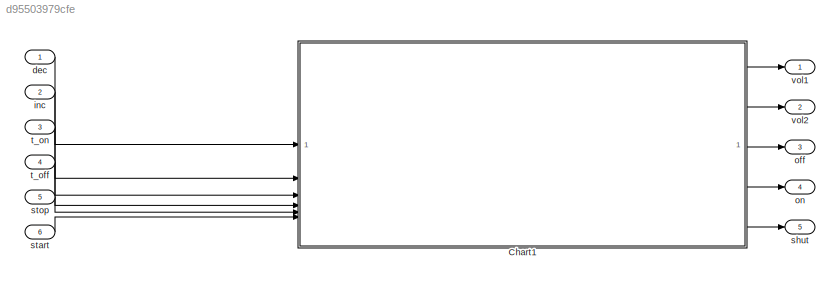
MODEL slx_d95503979cfe
KIND model
CONFIG AbsTol = auto
CONFIG EnableMultiTasking = off
CONFIG FixedStep = 0.1
CONFIG MaxStep = auto
CONFIG MinStep = auto
CONFIG RelTol = 1e-3
CONFIG SampleTimeConstraint = Unconstrained
CONFIG SolverName = FixedStepDiscrete
CONFIG StartTime = 0.0
CONFIG StopTime = 10.0
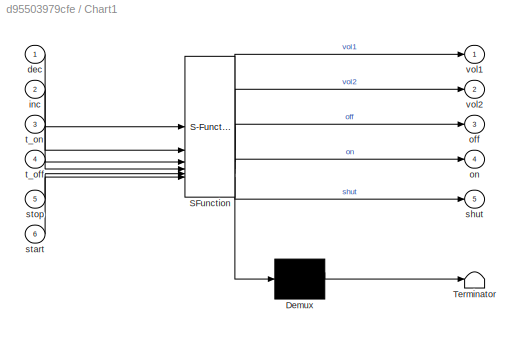
BLOCK [SubSystem] Chart1
  ErrorFcn = Stateflow.Translate.translate
  PermitHierarchicalResolution = ExplicitOnly
  SFBlockType = Chart
  TreatAsAtomicUnit = on
BLOCK [Demux] Chart1/ Demux 
  Outputs = 1
BLOCK [S-Function] Chart1/ SFunction 
  EnableBusSupport = on
  FunctionName = sf_sfun
  PortCounts = [6 6]
  SFcnIsStateOwnerBlock = off
  SFunctionDeploymentMode = off
  Tag = Stateflow S-Function 2
BLOCK [Terminator] Chart1/ Terminator 
BLOCK [Inport] Chart1/dec
BLOCK [Inport] Chart1/inc
  Port = 2
BLOCK [Outport] Chart1/off
  Port = 3
BLOCK [Outport] Chart1/on
  Port = 4
BLOCK [Outport] Chart1/shut
  Port = 5
BLOCK [Inport] Chart1/start
  Port = 6
BLOCK [Inport] Chart1/stop
  Port = 5
BLOCK [Inport] Chart1/t_off
  Port = 4
BLOCK [Inport] Chart1/t_on
  Port = 3
BLOCK [Outport] Chart1/vol1
BLOCK [Outport] Chart1/vol2
  Port = 2
BLOCK [Inport] dec
BLOCK [Inport] inc
  Port = 2
BLOCK [Outport] off
  Port = 3
BLOCK [Outport] on
  Port = 4
BLOCK [Outport] shut
  Port = 5
BLOCK [Inport] start
  Port = 6
BLOCK [Inport] stop
  Port = 5
BLOCK [Inport] t_off
  Port = 4
BLOCK [Inport] t_on
  Port = 3
BLOCK [Outport] vol1
BLOCK [Outport] vol2
  Port = 2
LINE Chart1:1 -> vol1:1
LINE Chart1:2 -> vol2:1
LINE Chart1:3 -> off:1
LINE Chart1:4 -> on:1
LINE Chart1:5 -> shut:1
LINE dec:1 -> Chart1:1
LINE inc:1 -> Chart1:2
LINE start:1 -> Chart1:6
LINE stop:1 -> Chart1:5
LINE t_off:1 -> Chart1:4
LINE t_on:1 -> Chart1:3
CHART Chart1 states=8 transitions=10
  STATE_LABEL 'Shut'
  STATE_LABEL 'Op'
  STATE_LABEL 'Mode'
  STATE_LABEL 'On'
  STATE_LABEL 'Off'
  STATE_LABEL '[t_on == 1]{off = 0; on = 1}'
  STATE_LABEL '[t_off == 1]{off = 1; on = 0}'
  STATE_LABEL '{off = 1; on = 0;}'
  STATE_LABEL 'Vol'
  STATE_LABEL 'Vol1'
  STATE_LABEL 'Vol2'
  STATE_LABEL '{vol1 = 1; vol2 = 0;}'
  STATE_LABEL '[dec == 1]{vol1 = 1; vol2 = 0}'
  STATE_LABEL '[inc == 1]{vol1 = 0; vol2 = 1}'
  STATE_LABEL 'Mode'
  STATE_LABEL 'On'
  STATE_LABEL 'Off'
  STATE_LABEL '[t_on == 1]{off = 0; on = 1}'
  STATE_LABEL '[t_off == 1]{off = 1; on = 0}'
  STATE_LABEL '{off = 1; on = 0;}'
  STATE_LABEL 'On'
  STATE_LABEL 'Off'
  STATE_LABEL 'Vol'
  STATE_LABEL 'Vol1'
  STATE_LABEL 'Vol2'
  STATE_LABEL '{vol1 = 1; vol2 = 0;}'
  STATE_LABEL '[dec == 1]{vol1 = 1; vol2 = 0}'
  STATE_LABEL '[inc == 1]{vol1 = 0; vol2 = 1}'
  STATE_LABEL 'Vol1'
  STATE_LABEL 'Vol2'
CHART  states=0 transitions=0
